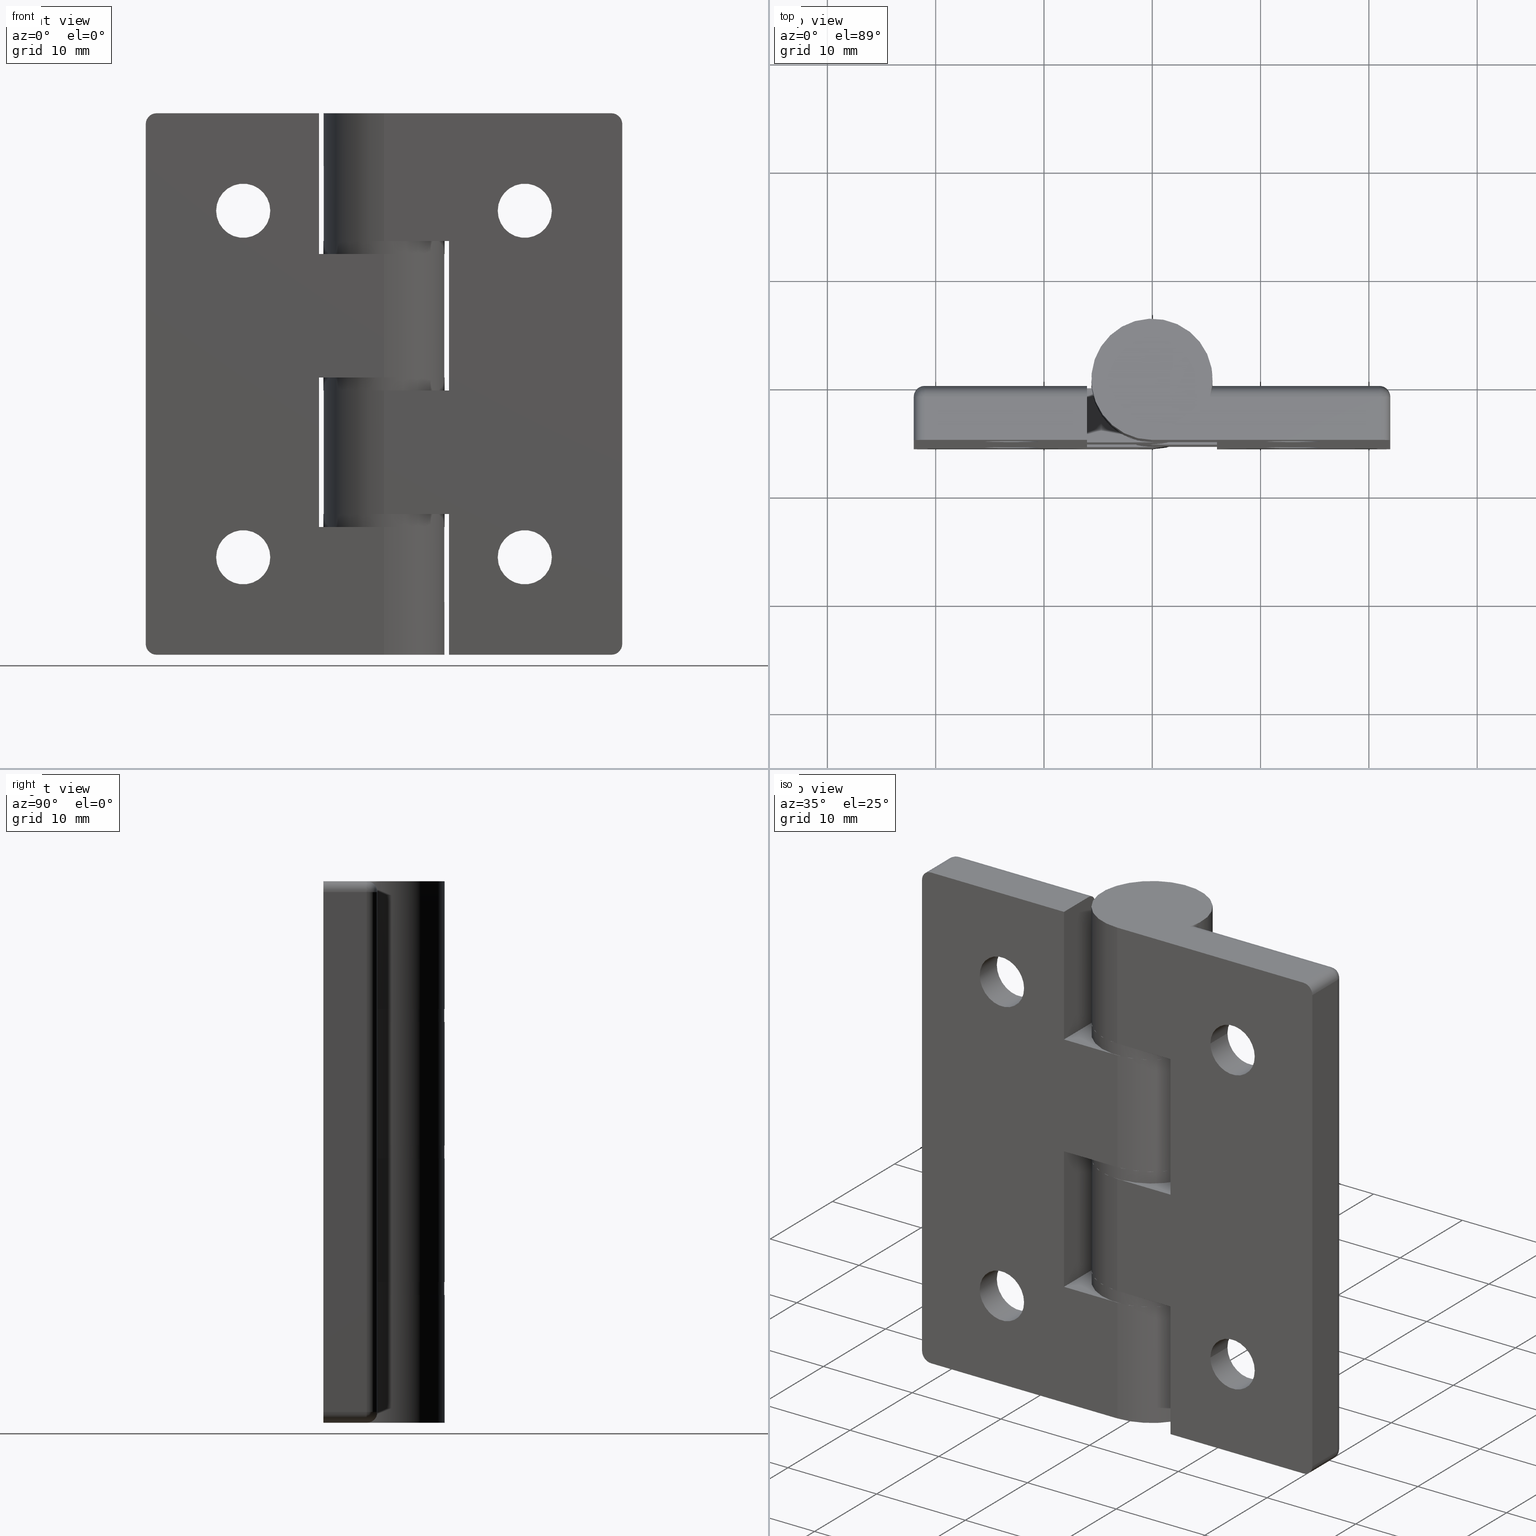
[diagram: canonical four-view strip — front | top / right | iso, engineering-drawing reading convention]
A machine part, canonical four-view strip (front | top / right | iso — engineering-drawing reading convention). The complete STEP part file that produces these views, byte-faithful:
ISO-10303-21;
HEADER;
/* Generated by software containing ST-Developer
 * from STEP Tools, Inc. (www.steptools.com) 
 */

FILE_DESCRIPTION(
/* description */ (''),
/* implementation_level */ '2;1');

FILE_NAME(
/* name */ '\\\\SYNOLOGYNAS\\web\\db2\\HS5044\\\X2\B3C4BA74\X0\\\HS504
4.stp',
/* time_stamp */ '2023-12-20T11:29:50+09:00',
/* author */ ('user'),
/* organization */ (''),
/* preprocessor_version */ 'ST-DEVELOPER v15.6',
/* originating_system */ 'Autodesk Inventor 2015',
/* authorisation */ '');

FILE_SCHEMA (('AUTOMOTIVE_DESIGN { 1 0 10303 214 3 1 1 }'));
ENDSEC;

DATA;
#10=MECHANICAL_DESIGN_GEOMETRIC_PRESENTATION_REPRESENTATION('',(#41,#43,
#42),#950);
#11=ITEM_DEFINED_TRANSFORMATION($,$,#537,#603);
#12=ITEM_DEFINED_TRANSFORMATION($,$,#537,#604);
#13=ITEM_DEFINED_TRANSFORMATION($,$,#587,#605);
#14=ITEM_DEFINED_TRANSFORMATION($,$,#593,#606);
#15=ITEM_DEFINED_TRANSFORMATION($,$,#593,#607);
#16=ITEM_DEFINED_TRANSFORMATION($,$,#593,#608);
#17=(
REPRESENTATION_RELATIONSHIP($,$,#971,#974)
REPRESENTATION_RELATIONSHIP_WITH_TRANSFORMATION(#11)
SHAPE_REPRESENTATION_RELATIONSHIP()
);
#18=(
REPRESENTATION_RELATIONSHIP($,$,#971,#974)
REPRESENTATION_RELATIONSHIP_WITH_TRANSFORMATION(#12)
SHAPE_REPRESENTATION_RELATIONSHIP()
);
#19=(
REPRESENTATION_RELATIONSHIP($,$,#972,#974)
REPRESENTATION_RELATIONSHIP_WITH_TRANSFORMATION(#13)
SHAPE_REPRESENTATION_RELATIONSHIP()
);
#20=(
REPRESENTATION_RELATIONSHIP($,$,#973,#974)
REPRESENTATION_RELATIONSHIP_WITH_TRANSFORMATION(#14)
SHAPE_REPRESENTATION_RELATIONSHIP()
);
#21=(
REPRESENTATION_RELATIONSHIP($,$,#973,#974)
REPRESENTATION_RELATIONSHIP_WITH_TRANSFORMATION(#15)
SHAPE_REPRESENTATION_RELATIONSHIP()
);
#22=(
REPRESENTATION_RELATIONSHIP($,$,#973,#974)
REPRESENTATION_RELATIONSHIP_WITH_TRANSFORMATION(#16)
SHAPE_REPRESENTATION_RELATIONSHIP()
);
#23=CONTEXT_DEPENDENT_SHAPE_REPRESENTATION(#17,#965);
#24=CONTEXT_DEPENDENT_SHAPE_REPRESENTATION(#18,#966);
#25=CONTEXT_DEPENDENT_SHAPE_REPRESENTATION(#19,#967);
#26=CONTEXT_DEPENDENT_SHAPE_REPRESENTATION(#20,#968);
#27=CONTEXT_DEPENDENT_SHAPE_REPRESENTATION(#21,#969);
#28=CONTEXT_DEPENDENT_SHAPE_REPRESENTATION(#22,#970);
#29=NEXT_ASSEMBLY_USAGE_OCCURRENCE('HS5044_L:1',$,$,#979,#976,$);
#30=NEXT_ASSEMBLY_USAGE_OCCURRENCE('HS5044_L:2',$,$,#979,#976,$);
#31=NEXT_ASSEMBLY_USAGE_OCCURRENCE('HS5044_P:1',$,$,#979,#977,$);
#32=NEXT_ASSEMBLY_USAGE_OCCURRENCE('HS5044_W:1',$,$,#979,#978,$);
#33=NEXT_ASSEMBLY_USAGE_OCCURRENCE('HS5044_W:2',$,$,#979,#978,$);
#34=NEXT_ASSEMBLY_USAGE_OCCURRENCE('HS5044_W:3',$,$,#979,#978,$);
#35=SHAPE_REPRESENTATION_RELATIONSHIP('SRR','None',#971,#38);
#36=SHAPE_REPRESENTATION_RELATIONSHIP('SRR','None',#972,#39);
#37=SHAPE_REPRESENTATION_RELATIONSHIP('SRR','None',#973,#40);
#38=ADVANCED_BREP_SHAPE_REPRESENTATION($,(#44),#946);
#39=ADVANCED_BREP_SHAPE_REPRESENTATION($,(#45),#947);
#40=ADVANCED_BREP_SHAPE_REPRESENTATION($,(#46),#948);
#41=STYLED_ITEM('',(#995),#44);
#42=STYLED_ITEM('',(#996),#45);
#43=STYLED_ITEM('',(#997),#46);
#44=MANIFOLD_SOLID_BREP('\X2\C194B9ACB4DC\X0\1',#534);
#45=MANIFOLD_SOLID_BREP('\X2\C194B9ACB4DC\X0\1',#535);
#46=MANIFOLD_SOLID_BREP('\X2\C194B9ACB4DC\X0\2',#536);
#47=CONICAL_SURFACE('',#560,3.625,45.);
#48=CONICAL_SURFACE('',#564,3.625,45.);
#49=FACE_BOUND('',#128,.T.);
#50=FACE_BOUND('',#129,.T.);
#51=FACE_BOUND('',#131,.T.);
#52=FACE_BOUND('',#133,.T.);
#53=FACE_BOUND('',#135,.T.);
#54=FACE_BOUND('',#137,.T.);
#55=FACE_BOUND('',#140,.T.);
#56=FACE_BOUND('',#142,.T.);
#57=FACE_BOUND('',#144,.T.);
#58=FACE_BOUND('',#148,.T.);
#59=FACE_BOUND('',#150,.T.);
#60=FACE_BOUND('',#153,.T.);
#61=FACE_BOUND('',#154,.T.);
#62=FACE_BOUND('',#158,.T.);
#63=FACE_BOUND('',#162,.T.);
#64=FACE_BOUND('',#164,.T.);
#65=FACE_BOUND('',#166,.T.);
#66=FACE_BOUND('',#168,.T.);
#67=PLANE('',#552);
#68=PLANE('',#555);
#69=PLANE('',#557);
#70=PLANE('',#568);
#71=PLANE('',#569);
#72=PLANE('',#572);
#73=PLANE('',#575);
#74=PLANE('',#578);
#75=PLANE('',#583);
#76=PLANE('',#584);
#77=PLANE('',#585);
#78=PLANE('',#591);
#79=PLANE('',#592);
#80=PLANE('',#600);
#81=PLANE('',#601);
#82=SPHERICAL_SURFACE('',#546,1.);
#83=SPHERICAL_SURFACE('',#548,1.);
#84=B_SPLINE_CURVE_WITH_KNOTS('',3,(#808,#809,#810,#811,#812,#813,#814,
#815,#816,#817),.UNSPECIFIED.,.F.,.F.,(4,2,2,2,4),(0.156454962117249,0.195125596353525,
0.233796230589801,0.271393084701648,0.308989938813494),.UNSPECIFIED.);
#85=FACE_OUTER_BOUND('',#118,.T.);
#86=FACE_OUTER_BOUND('',#119,.T.);
#87=FACE_OUTER_BOUND('',#120,.T.);
#88=FACE_OUTER_BOUND('',#121,.T.);
#89=FACE_OUTER_BOUND('',#122,.T.);
#90=FACE_OUTER_BOUND('',#123,.T.);
#91=FACE_OUTER_BOUND('',#124,.T.);
#92=FACE_OUTER_BOUND('',#125,.T.);
#93=FACE_OUTER_BOUND('',#126,.T.);
#94=FACE_OUTER_BOUND('',#127,.T.);
#95=FACE_OUTER_BOUND('',#130,.T.);
#96=FACE_OUTER_BOUND('',#132,.T.);
#97=FACE_OUTER_BOUND('',#134,.T.);
#98=FACE_OUTER_BOUND('',#136,.T.);
#99=FACE_OUTER_BOUND('',#138,.T.);
#100=FACE_OUTER_BOUND('',#139,.T.);
#101=FACE_OUTER_BOUND('',#141,.T.);
#102=FACE_OUTER_BOUND('',#143,.T.);
#103=FACE_OUTER_BOUND('',#145,.T.);
#104=FACE_OUTER_BOUND('',#146,.T.);
#105=FACE_OUTER_BOUND('',#147,.T.);
#106=FACE_OUTER_BOUND('',#149,.T.);
#107=FACE_OUTER_BOUND('',#151,.T.);
#108=FACE_OUTER_BOUND('',#152,.T.);
#109=FACE_OUTER_BOUND('',#155,.T.);
#110=FACE_OUTER_BOUND('',#156,.T.);
#111=FACE_OUTER_BOUND('',#157,.T.);
#112=FACE_OUTER_BOUND('',#159,.T.);
#113=FACE_OUTER_BOUND('',#160,.T.);
#114=FACE_OUTER_BOUND('',#161,.T.);
#115=FACE_OUTER_BOUND('',#163,.T.);
#116=FACE_OUTER_BOUND('',#165,.T.);
#117=FACE_OUTER_BOUND('',#167,.T.);
#118=EDGE_LOOP('',(#365,#366,#367,#368));
#119=EDGE_LOOP('',(#369,#370,#371,#372));
#120=EDGE_LOOP('',(#373,#374,#375,#376));
#121=EDGE_LOOP('',(#377,#378,#379));
#122=EDGE_LOOP('',(#380,#381,#382));
#123=EDGE_LOOP('',(#383,#384,#385,#386));
#124=EDGE_LOOP('',(#387,#388,#389,#390));
#125=EDGE_LOOP('',(#391,#392,#393,#394));
#126=EDGE_LOOP('',(#395,#396,#397,#398));
#127=EDGE_LOOP('',(#399,#400,#401,#402,#403,#404,#405,#406,#407,#408));
#128=EDGE_LOOP('',(#409));
#129=EDGE_LOOP('',(#410));
#130=EDGE_LOOP('',(#411));
#131=EDGE_LOOP('',(#412));
#132=EDGE_LOOP('',(#413));
#133=EDGE_LOOP('',(#414));
#134=EDGE_LOOP('',(#415));
#135=EDGE_LOOP('',(#416));
#136=EDGE_LOOP('',(#417));
#137=EDGE_LOOP('',(#418));
#138=EDGE_LOOP('',(#419,#420,#421,#422));
#139=EDGE_LOOP('',(#423,#424,#425,#426));
#140=EDGE_LOOP('',(#427));
#141=EDGE_LOOP('',(#428,#429,#430,#431));
#142=EDGE_LOOP('',(#432));
#143=EDGE_LOOP('',(#433,#434,#435,#436));
#144=EDGE_LOOP('',(#437));
#145=EDGE_LOOP('',(#438,#439,#440,#441,#442));
#146=EDGE_LOOP('',(#443,#444,#445,#446,#447));
#147=EDGE_LOOP('',(#448));
#148=EDGE_LOOP('',(#449));
#149=EDGE_LOOP('',(#450));
#150=EDGE_LOOP('',(#451));
#151=EDGE_LOOP('',(#452));
#152=EDGE_LOOP('',(#453,#454,#455,#456,#457,#458,#459,#460,#461,#462,#463,
#464));
#153=EDGE_LOOP('',(#465));
#154=EDGE_LOOP('',(#466));
#155=EDGE_LOOP('',(#467,#468,#469,#470));
#156=EDGE_LOOP('',(#471,#472,#473,#474));
#157=EDGE_LOOP('',(#475));
#158=EDGE_LOOP('',(#476));
#159=EDGE_LOOP('',(#477));
#160=EDGE_LOOP('',(#478));
#161=EDGE_LOOP('',(#479));
#162=EDGE_LOOP('',(#480));
#163=EDGE_LOOP('',(#481));
#164=EDGE_LOOP('',(#482));
#165=EDGE_LOOP('',(#483));
#166=EDGE_LOOP('',(#484));
#167=EDGE_LOOP('',(#485));
#168=EDGE_LOOP('',(#486));
#169=LINE('',#790,#200);
#170=LINE('',#793,#201);
#171=LINE('',#798,#202);
#172=LINE('',#801,#203);
#173=LINE('',#806,#204);
#174=LINE('',#818,#205);
#175=LINE('',#825,#206);
#176=LINE('',#828,#207);
#177=LINE('',#831,#208);
#178=LINE('',#832,#209);
#179=LINE('',#835,#210);
#180=LINE('',#840,#211);
#181=LINE('',#843,#212);
#182=LINE('',#845,#213);
#183=LINE('',#847,#214);
#184=LINE('',#849,#215);
#185=LINE('',#851,#216);
#186=LINE('',#853,#217);
#187=LINE('',#854,#218);
#188=LINE('',#873,#219);
#189=LINE('',#875,#220);
#190=LINE('',#876,#221);
#191=LINE('',#879,#222);
#192=LINE('',#886,#223);
#193=LINE('',#891,#224);
#194=LINE('',#893,#225);
#195=LINE('',#899,#226);
#196=LINE('',#900,#227);
#197=LINE('',#902,#228);
#198=LINE('',#909,#229);
#199=LINE('',#910,#230);
#200=VECTOR('',#615,15.);
#201=VECTOR('',#618,15.);
#202=VECTOR('',#623,48.);
#203=VECTOR('',#626,48.);
#204=VECTOR('',#631,15.43223563717);
#205=VECTOR('',#632,15.6334368540005);
#206=VECTOR('',#643,4.);
#207=VECTOR('',#646,4.);
#208=VECTOR('',#649,4.);
#209=VECTOR('',#650,48.);
#210=VECTOR('',#653,4.);
#211=VECTOR('',#660,21.);
#212=VECTOR('',#663,12.);
#213=VECTOR('',#664,0.432235637169974);
#214=VECTOR('',#665,11.4);
#215=VECTOR('',#666,0.432235637169976);
#216=VECTOR('',#667,13.8);
#217=VECTOR('',#668,0.432235637169981);
#218=VECTOR('',#669,10.8);
#219=VECTOR('',#692,5.);
#220=VECTOR('',#693,13.8);
#221=VECTOR('',#694,5.);
#222=VECTOR('',#697,6.00000000000001);
#223=VECTOR('',#706,6.00000000000001);
#224=VECTOR('',#711,5.);
#225=VECTOR('',#712,6.);
#226=VECTOR('',#719,4.);
#227=VECTOR('',#720,13.);
#228=VECTOR('',#723,11.8);
#229=VECTOR('',#734,11.4);
#230=VECTOR('',#735,15.);
#231=CIRCLE('',#539,1.);
#232=CIRCLE('',#540,1.);
#233=CIRCLE('',#542,0.999999999999996);
#234=CIRCLE('',#543,1.);
#235=CIRCLE('',#545,0.999999999999996);
#236=CIRCLE('',#547,1.);
#237=CIRCLE('',#549,1.);
#238=CIRCLE('',#551,1.);
#239=CIRCLE('',#554,1.);
#240=CIRCLE('',#556,5.6);
#241=CIRCLE('',#558,4.75);
#242=CIRCLE('',#559,4.75);
#243=CIRCLE('',#561,2.5);
#244=CIRCLE('',#563,2.5);
#245=CIRCLE('',#565,2.5);
#246=CIRCLE('',#567,2.5);
#247=CIRCLE('',#570,5.6);
#248=CIRCLE('',#571,3.1);
#249=CIRCLE('',#573,5.6);
#250=CIRCLE('',#574,3.1);
#251=CIRCLE('',#576,5.6);
#252=CIRCLE('',#577,3.1);
#253=CIRCLE('',#582,3.1);
#254=CIRCLE('',#589,3.);
#255=CIRCLE('',#590,3.);
#256=CIRCLE('',#595,3.1);
#257=CIRCLE('',#596,3.1);
#258=CIRCLE('',#598,5.6);
#259=CIRCLE('',#599,5.6);
#260=VERTEX_POINT('',#786);
#261=VERTEX_POINT('',#787);
#262=VERTEX_POINT('',#789);
#263=VERTEX_POINT('',#791);
#264=VERTEX_POINT('',#795);
#265=VERTEX_POINT('',#797);
#266=VERTEX_POINT('',#799);
#267=VERTEX_POINT('',#803);
#268=VERTEX_POINT('',#805);
#269=VERTEX_POINT('',#807);
#270=VERTEX_POINT('',#824);
#271=VERTEX_POINT('',#826);
#272=VERTEX_POINT('',#830);
#273=VERTEX_POINT('',#834);
#274=VERTEX_POINT('',#838);
#275=VERTEX_POINT('',#842);
#276=VERTEX_POINT('',#844);
#277=VERTEX_POINT('',#846);
#278=VERTEX_POINT('',#848);
#279=VERTEX_POINT('',#850);
#280=VERTEX_POINT('',#852);
#281=VERTEX_POINT('',#855);
#282=VERTEX_POINT('',#857);
#283=VERTEX_POINT('',#860);
#284=VERTEX_POINT('',#863);
#285=VERTEX_POINT('',#866);
#286=VERTEX_POINT('',#869);
#287=VERTEX_POINT('',#872);
#288=VERTEX_POINT('',#874);
#289=VERTEX_POINT('',#878);
#290=VERTEX_POINT('',#881);
#291=VERTEX_POINT('',#884);
#292=VERTEX_POINT('',#887);
#293=VERTEX_POINT('',#890);
#294=VERTEX_POINT('',#892);
#295=VERTEX_POINT('',#895);
#296=VERTEX_POINT('',#898);
#297=VERTEX_POINT('',#905);
#298=VERTEX_POINT('',#915);
#299=VERTEX_POINT('',#917);
#300=VERTEX_POINT('',#923);
#301=VERTEX_POINT('',#925);
#302=VERTEX_POINT('',#928);
#303=VERTEX_POINT('',#930);
#304=EDGE_CURVE('',#260,#261,#231,.T.);
#305=EDGE_CURVE('',#261,#262,#169,.T.);
#306=EDGE_CURVE('',#262,#263,#232,.T.);
#307=EDGE_CURVE('',#263,#260,#170,.T.);
#308=EDGE_CURVE('',#264,#262,#233,.T.);
#309=EDGE_CURVE('',#262,#265,#171,.T.);
#310=EDGE_CURVE('',#265,#266,#234,.T.);
#311=EDGE_CURVE('',#266,#264,#172,.T.);
#312=EDGE_CURVE('',#267,#265,#235,.T.);
#313=EDGE_CURVE('',#265,#268,#173,.T.);
#314=EDGE_CURVE('',#268,#269,#84,.F.);
#315=EDGE_CURVE('',#269,#267,#174,.T.);
#316=EDGE_CURVE('',#267,#266,#236,.T.);
#317=EDGE_CURVE('',#264,#263,#237,.T.);
#318=EDGE_CURVE('',#264,#270,#175,.T.);
#319=EDGE_CURVE('',#270,#271,#238,.T.);
#320=EDGE_CURVE('',#271,#263,#176,.T.);
#321=EDGE_CURVE('',#272,#266,#177,.T.);
#322=EDGE_CURVE('',#270,#272,#178,.T.);
#323=EDGE_CURVE('',#267,#273,#179,.T.);
#324=EDGE_CURVE('',#273,#272,#239,.T.);
#325=EDGE_CURVE('',#269,#274,#240,.T.);
#326=EDGE_CURVE('',#274,#273,#180,.T.);
#327=EDGE_CURVE('',#261,#275,#181,.T.);
#328=EDGE_CURVE('',#275,#276,#182,.T.);
#329=EDGE_CURVE('',#277,#276,#183,.T.);
#330=EDGE_CURVE('',#277,#278,#184,.T.);
#331=EDGE_CURVE('',#278,#279,#185,.T.);
#332=EDGE_CURVE('',#279,#280,#186,.T.);
#333=EDGE_CURVE('',#268,#280,#187,.T.);
#334=EDGE_CURVE('',#281,#281,#241,.T.);
#335=EDGE_CURVE('',#282,#282,#242,.T.);
#336=EDGE_CURVE('',#283,#283,#243,.T.);
#337=EDGE_CURVE('',#284,#284,#244,.T.);
#338=EDGE_CURVE('',#285,#285,#245,.T.);
#339=EDGE_CURVE('',#286,#286,#246,.T.);
#340=EDGE_CURVE('',#278,#287,#188,.T.);
#341=EDGE_CURVE('',#288,#287,#189,.T.);
#342=EDGE_CURVE('',#288,#279,#190,.T.);
#343=EDGE_CURVE('',#289,#288,#191,.T.);
#344=EDGE_CURVE('',#280,#289,#247,.T.);
#345=EDGE_CURVE('',#290,#290,#248,.T.);
#346=EDGE_CURVE('',#291,#277,#249,.T.);
#347=EDGE_CURVE('',#287,#291,#192,.T.);
#348=EDGE_CURVE('',#292,#292,#250,.T.);
#349=EDGE_CURVE('',#293,#275,#193,.T.);
#350=EDGE_CURVE('',#294,#293,#194,.T.);
#351=EDGE_CURVE('',#276,#294,#251,.T.);
#352=EDGE_CURVE('',#295,#295,#252,.T.);
#353=EDGE_CURVE('',#296,#260,#195,.T.);
#354=EDGE_CURVE('',#293,#296,#196,.T.);
#355=EDGE_CURVE('',#289,#274,#197,.T.);
#356=EDGE_CURVE('',#297,#297,#253,.T.);
#357=EDGE_CURVE('',#294,#291,#198,.T.);
#358=EDGE_CURVE('',#296,#271,#199,.T.);
#359=EDGE_CURVE('',#298,#298,#254,.T.);
#360=EDGE_CURVE('',#299,#299,#255,.T.);
#361=EDGE_CURVE('',#300,#300,#256,.T.);
#362=EDGE_CURVE('',#301,#301,#257,.T.);
#363=EDGE_CURVE('',#302,#302,#258,.T.);
#364=EDGE_CURVE('',#303,#303,#259,.T.);
#365=ORIENTED_EDGE('',*,*,#304,.T.);
#366=ORIENTED_EDGE('',*,*,#305,.T.);
#367=ORIENTED_EDGE('',*,*,#306,.T.);
#368=ORIENTED_EDGE('',*,*,#307,.T.);
#369=ORIENTED_EDGE('',*,*,#308,.T.);
#370=ORIENTED_EDGE('',*,*,#309,.T.);
#371=ORIENTED_EDGE('',*,*,#310,.T.);
#372=ORIENTED_EDGE('',*,*,#311,.T.);
#373=ORIENTED_EDGE('',*,*,#312,.T.);
#374=ORIENTED_EDGE('',*,*,#313,.T.);
#375=ORIENTED_EDGE('',*,*,#314,.T.);
#376=ORIENTED_EDGE('',*,*,#315,.T.);
#377=ORIENTED_EDGE('',*,*,#312,.F.);
#378=ORIENTED_EDGE('',*,*,#316,.T.);
#379=ORIENTED_EDGE('',*,*,#310,.F.);
#380=ORIENTED_EDGE('',*,*,#308,.F.);
#381=ORIENTED_EDGE('',*,*,#317,.T.);
#382=ORIENTED_EDGE('',*,*,#306,.F.);
#383=ORIENTED_EDGE('',*,*,#317,.F.);
#384=ORIENTED_EDGE('',*,*,#318,.T.);
#385=ORIENTED_EDGE('',*,*,#319,.T.);
#386=ORIENTED_EDGE('',*,*,#320,.T.);
#387=ORIENTED_EDGE('',*,*,#311,.F.);
#388=ORIENTED_EDGE('',*,*,#321,.F.);
#389=ORIENTED_EDGE('',*,*,#322,.F.);
#390=ORIENTED_EDGE('',*,*,#318,.F.);
#391=ORIENTED_EDGE('',*,*,#316,.F.);
#392=ORIENTED_EDGE('',*,*,#323,.T.);
#393=ORIENTED_EDGE('',*,*,#324,.T.);
#394=ORIENTED_EDGE('',*,*,#321,.T.);
#395=ORIENTED_EDGE('',*,*,#315,.F.);
#396=ORIENTED_EDGE('',*,*,#325,.T.);
#397=ORIENTED_EDGE('',*,*,#326,.T.);
#398=ORIENTED_EDGE('',*,*,#323,.F.);
#399=ORIENTED_EDGE('',*,*,#305,.F.);
#400=ORIENTED_EDGE('',*,*,#327,.T.);
#401=ORIENTED_EDGE('',*,*,#328,.T.);
#402=ORIENTED_EDGE('',*,*,#329,.F.);
#403=ORIENTED_EDGE('',*,*,#330,.T.);
#404=ORIENTED_EDGE('',*,*,#331,.T.);
#405=ORIENTED_EDGE('',*,*,#332,.T.);
#406=ORIENTED_EDGE('',*,*,#333,.F.);
#407=ORIENTED_EDGE('',*,*,#313,.F.);
#408=ORIENTED_EDGE('',*,*,#309,.F.);
#409=ORIENTED_EDGE('',*,*,#334,.T.);
#410=ORIENTED_EDGE('',*,*,#335,.T.);
#411=ORIENTED_EDGE('',*,*,#334,.F.);
#412=ORIENTED_EDGE('',*,*,#336,.F.);
#413=ORIENTED_EDGE('',*,*,#337,.F.);
#414=ORIENTED_EDGE('',*,*,#336,.T.);
#415=ORIENTED_EDGE('',*,*,#335,.F.);
#416=ORIENTED_EDGE('',*,*,#338,.F.);
#417=ORIENTED_EDGE('',*,*,#339,.F.);
#418=ORIENTED_EDGE('',*,*,#338,.T.);
#419=ORIENTED_EDGE('',*,*,#331,.F.);
#420=ORIENTED_EDGE('',*,*,#340,.T.);
#421=ORIENTED_EDGE('',*,*,#341,.F.);
#422=ORIENTED_EDGE('',*,*,#342,.T.);
#423=ORIENTED_EDGE('',*,*,#332,.F.);
#424=ORIENTED_EDGE('',*,*,#342,.F.);
#425=ORIENTED_EDGE('',*,*,#343,.F.);
#426=ORIENTED_EDGE('',*,*,#344,.F.);
#427=ORIENTED_EDGE('',*,*,#345,.F.);
#428=ORIENTED_EDGE('',*,*,#330,.F.);
#429=ORIENTED_EDGE('',*,*,#346,.F.);
#430=ORIENTED_EDGE('',*,*,#347,.F.);
#431=ORIENTED_EDGE('',*,*,#340,.F.);
#432=ORIENTED_EDGE('',*,*,#348,.F.);
#433=ORIENTED_EDGE('',*,*,#328,.F.);
#434=ORIENTED_EDGE('',*,*,#349,.F.);
#435=ORIENTED_EDGE('',*,*,#350,.F.);
#436=ORIENTED_EDGE('',*,*,#351,.F.);
#437=ORIENTED_EDGE('',*,*,#352,.F.);
#438=ORIENTED_EDGE('',*,*,#304,.F.);
#439=ORIENTED_EDGE('',*,*,#353,.F.);
#440=ORIENTED_EDGE('',*,*,#354,.F.);
#441=ORIENTED_EDGE('',*,*,#349,.T.);
#442=ORIENTED_EDGE('',*,*,#327,.F.);
#443=ORIENTED_EDGE('',*,*,#344,.T.);
#444=ORIENTED_EDGE('',*,*,#355,.T.);
#445=ORIENTED_EDGE('',*,*,#325,.F.);
#446=ORIENTED_EDGE('',*,*,#314,.F.);
#447=ORIENTED_EDGE('',*,*,#333,.T.);
#448=ORIENTED_EDGE('',*,*,#352,.T.);
#449=ORIENTED_EDGE('',*,*,#348,.T.);
#450=ORIENTED_EDGE('',*,*,#345,.T.);
#451=ORIENTED_EDGE('',*,*,#356,.T.);
#452=ORIENTED_EDGE('',*,*,#356,.F.);
#453=ORIENTED_EDGE('',*,*,#324,.F.);
#454=ORIENTED_EDGE('',*,*,#326,.F.);
#455=ORIENTED_EDGE('',*,*,#355,.F.);
#456=ORIENTED_EDGE('',*,*,#343,.T.);
#457=ORIENTED_EDGE('',*,*,#341,.T.);
#458=ORIENTED_EDGE('',*,*,#347,.T.);
#459=ORIENTED_EDGE('',*,*,#357,.F.);
#460=ORIENTED_EDGE('',*,*,#350,.T.);
#461=ORIENTED_EDGE('',*,*,#354,.T.);
#462=ORIENTED_EDGE('',*,*,#358,.T.);
#463=ORIENTED_EDGE('',*,*,#319,.F.);
#464=ORIENTED_EDGE('',*,*,#322,.T.);
#465=ORIENTED_EDGE('',*,*,#337,.T.);
#466=ORIENTED_EDGE('',*,*,#339,.T.);
#467=ORIENTED_EDGE('',*,*,#307,.F.);
#468=ORIENTED_EDGE('',*,*,#320,.F.);
#469=ORIENTED_EDGE('',*,*,#358,.F.);
#470=ORIENTED_EDGE('',*,*,#353,.T.);
#471=ORIENTED_EDGE('',*,*,#346,.T.);
#472=ORIENTED_EDGE('',*,*,#329,.T.);
#473=ORIENTED_EDGE('',*,*,#351,.T.);
#474=ORIENTED_EDGE('',*,*,#357,.T.);
#475=ORIENTED_EDGE('',*,*,#359,.F.);
#476=ORIENTED_EDGE('',*,*,#360,.T.);
#477=ORIENTED_EDGE('',*,*,#359,.T.);
#478=ORIENTED_EDGE('',*,*,#360,.F.);
#479=ORIENTED_EDGE('',*,*,#361,.F.);
#480=ORIENTED_EDGE('',*,*,#362,.F.);
#481=ORIENTED_EDGE('',*,*,#363,.F.);
#482=ORIENTED_EDGE('',*,*,#364,.F.);
#483=ORIENTED_EDGE('',*,*,#364,.T.);
#484=ORIENTED_EDGE('',*,*,#362,.T.);
#485=ORIENTED_EDGE('',*,*,#363,.T.);
#486=ORIENTED_EDGE('',*,*,#361,.T.);
#487=CYLINDRICAL_SURFACE('',#538,1.);
#488=CYLINDRICAL_SURFACE('',#541,1.);
#489=CYLINDRICAL_SURFACE('',#544,1.);
#490=CYLINDRICAL_SURFACE('',#550,1.);
#491=CYLINDRICAL_SURFACE('',#553,1.);
#492=CYLINDRICAL_SURFACE('',#562,2.5);
#493=CYLINDRICAL_SURFACE('',#566,2.5);
#494=CYLINDRICAL_SURFACE('',#579,5.6);
#495=CYLINDRICAL_SURFACE('',#580,3.1);
#496=CYLINDRICAL_SURFACE('',#581,3.1);
#497=CYLINDRICAL_SURFACE('',#586,5.6);
#498=CYLINDRICAL_SURFACE('',#588,3.);
#499=CYLINDRICAL_SURFACE('',#594,3.1);
#500=CYLINDRICAL_SURFACE('',#597,5.6);
#501=ADVANCED_FACE('',(#85),#487,.T.);
#502=ADVANCED_FACE('',(#86),#488,.T.);
#503=ADVANCED_FACE('',(#87),#489,.T.);
#504=ADVANCED_FACE('',(#88),#82,.T.);
#505=ADVANCED_FACE('',(#89),#83,.T.);
#506=ADVANCED_FACE('',(#90),#490,.T.);
#507=ADVANCED_FACE('',(#91),#67,.T.);
#508=ADVANCED_FACE('',(#92),#491,.T.);
#509=ADVANCED_FACE('',(#93),#68,.T.);
#510=ADVANCED_FACE('',(#94,#49,#50),#69,.T.);
#511=ADVANCED_FACE('',(#95,#51),#47,.F.);
#512=ADVANCED_FACE('',(#96,#52),#492,.F.);
#513=ADVANCED_FACE('',(#97,#53),#48,.F.);
#514=ADVANCED_FACE('',(#98,#54),#493,.F.);
#515=ADVANCED_FACE('',(#99),#70,.F.);
#516=ADVANCED_FACE('',(#100,#55),#71,.F.);
#517=ADVANCED_FACE('',(#101,#56),#72,.F.);
#518=ADVANCED_FACE('',(#102,#57),#73,.F.);
#519=ADVANCED_FACE('',(#103),#74,.F.);
#520=ADVANCED_FACE('',(#104),#494,.T.);
#521=ADVANCED_FACE('',(#105,#58),#495,.F.);
#522=ADVANCED_FACE('',(#106,#59),#496,.F.);
#523=ADVANCED_FACE('',(#107),#75,.T.);
#524=ADVANCED_FACE('',(#108,#60,#61),#76,.T.);
#525=ADVANCED_FACE('',(#109),#77,.T.);
#526=ADVANCED_FACE('',(#110),#497,.T.);
#527=ADVANCED_FACE('',(#111,#62),#498,.T.);
#528=ADVANCED_FACE('',(#112),#78,.F.);
#529=ADVANCED_FACE('',(#113),#79,.T.);
#530=ADVANCED_FACE('',(#114,#63),#499,.F.);
#531=ADVANCED_FACE('',(#115,#64),#500,.T.);
#532=ADVANCED_FACE('',(#116,#65),#80,.F.);
#533=ADVANCED_FACE('',(#117,#66),#81,.T.);
#534=CLOSED_SHELL('',(#501,#502,#503,#504,#505,#506,#507,#508,#509,#510,
#511,#512,#513,#514,#515,#516,#517,#518,#519,#520,#521,#522,#523,#524,#525,
#526));
#535=CLOSED_SHELL('',(#527,#528,#529));
#536=CLOSED_SHELL('',(#530,#531,#532,#533));
#537=AXIS2_PLACEMENT_3D('placement',#784,#609,#610);
#538=AXIS2_PLACEMENT_3D('',#785,#611,#612);
#539=AXIS2_PLACEMENT_3D('',#788,#613,#614);
#540=AXIS2_PLACEMENT_3D('',#792,#616,#617);
#541=AXIS2_PLACEMENT_3D('',#794,#619,#620);
#542=AXIS2_PLACEMENT_3D('',#796,#621,#622);
#543=AXIS2_PLACEMENT_3D('',#800,#624,#625);
#544=AXIS2_PLACEMENT_3D('',#802,#627,#628);
#545=AXIS2_PLACEMENT_3D('',#804,#629,#630);
#546=AXIS2_PLACEMENT_3D('',#819,#633,#634);
#547=AXIS2_PLACEMENT_3D('',#820,#635,#636);
#548=AXIS2_PLACEMENT_3D('',#821,#637,#638);
#549=AXIS2_PLACEMENT_3D('',#822,#639,#640);
#550=AXIS2_PLACEMENT_3D('',#823,#641,#642);
#551=AXIS2_PLACEMENT_3D('',#827,#644,#645);
#552=AXIS2_PLACEMENT_3D('',#829,#647,#648);
#553=AXIS2_PLACEMENT_3D('',#833,#651,#652);
#554=AXIS2_PLACEMENT_3D('',#836,#654,#655);
#555=AXIS2_PLACEMENT_3D('',#837,#656,#657);
#556=AXIS2_PLACEMENT_3D('',#839,#658,#659);
#557=AXIS2_PLACEMENT_3D('',#841,#661,#662);
#558=AXIS2_PLACEMENT_3D('',#856,#670,#671);
#559=AXIS2_PLACEMENT_3D('',#858,#672,#673);
#560=AXIS2_PLACEMENT_3D('',#859,#674,#675);
#561=AXIS2_PLACEMENT_3D('',#861,#676,#677);
#562=AXIS2_PLACEMENT_3D('',#862,#678,#679);
#563=AXIS2_PLACEMENT_3D('',#864,#680,#681);
#564=AXIS2_PLACEMENT_3D('',#865,#682,#683);
#565=AXIS2_PLACEMENT_3D('',#867,#684,#685);
#566=AXIS2_PLACEMENT_3D('',#868,#686,#687);
#567=AXIS2_PLACEMENT_3D('',#870,#688,#689);
#568=AXIS2_PLACEMENT_3D('',#871,#690,#691);
#569=AXIS2_PLACEMENT_3D('',#877,#695,#696);
#570=AXIS2_PLACEMENT_3D('',#880,#698,#699);
#571=AXIS2_PLACEMENT_3D('',#882,#700,#701);
#572=AXIS2_PLACEMENT_3D('',#883,#702,#703);
#573=AXIS2_PLACEMENT_3D('',#885,#704,#705);
#574=AXIS2_PLACEMENT_3D('',#888,#707,#708);
#575=AXIS2_PLACEMENT_3D('',#889,#709,#710);
#576=AXIS2_PLACEMENT_3D('',#894,#713,#714);
#577=AXIS2_PLACEMENT_3D('',#896,#715,#716);
#578=AXIS2_PLACEMENT_3D('',#897,#717,#718);
#579=AXIS2_PLACEMENT_3D('',#901,#721,#722);
#580=AXIS2_PLACEMENT_3D('',#903,#724,#725);
#581=AXIS2_PLACEMENT_3D('',#904,#726,#727);
#582=AXIS2_PLACEMENT_3D('',#906,#728,#729);
#583=AXIS2_PLACEMENT_3D('',#907,#730,#731);
#584=AXIS2_PLACEMENT_3D('',#908,#732,#733);
#585=AXIS2_PLACEMENT_3D('',#911,#736,#737);
#586=AXIS2_PLACEMENT_3D('',#912,#738,#739);
#587=AXIS2_PLACEMENT_3D('placement',#913,#740,#741);
#588=AXIS2_PLACEMENT_3D('',#914,#742,#743);
#589=AXIS2_PLACEMENT_3D('',#916,#744,#745);
#590=AXIS2_PLACEMENT_3D('',#918,#746,#747);
#591=AXIS2_PLACEMENT_3D('',#919,#748,#749);
#592=AXIS2_PLACEMENT_3D('',#920,#750,#751);
#593=AXIS2_PLACEMENT_3D('placement',#921,#752,#753);
#594=AXIS2_PLACEMENT_3D('',#922,#754,#755);
#595=AXIS2_PLACEMENT_3D('',#924,#756,#757);
#596=AXIS2_PLACEMENT_3D('',#926,#758,#759);
#597=AXIS2_PLACEMENT_3D('',#927,#760,#761);
#598=AXIS2_PLACEMENT_3D('',#929,#762,#763);
#599=AXIS2_PLACEMENT_3D('',#931,#764,#765);
#600=AXIS2_PLACEMENT_3D('',#932,#766,#767);
#601=AXIS2_PLACEMENT_3D('',#933,#768,#769);
#602=AXIS2_PLACEMENT_3D('placement',#934,#770,#771);
#603=AXIS2_PLACEMENT_3D('',#935,#772,#773);
#604=AXIS2_PLACEMENT_3D('',#936,#774,#775);
#605=AXIS2_PLACEMENT_3D('',#937,#776,#777);
#606=AXIS2_PLACEMENT_3D('',#938,#778,#779);
#607=AXIS2_PLACEMENT_3D('',#939,#780,#781);
#608=AXIS2_PLACEMENT_3D('',#940,#782,#783);
#609=DIRECTION('axis',(0.,0.,1.));
#610=DIRECTION('refdir',(1.,0.,0.));
#611=DIRECTION('center_axis',(1.,1.26161707343768E-16,0.));
#612=DIRECTION('ref_axis',(0.,0.707106781186548,0.707106781186547));
#613=DIRECTION('center_axis',(-1.,-1.11022302462516E-16,3.41607084500048E-16));
#614=DIRECTION('ref_axis',(0.,0.707106781186548,0.707106781186547));
#615=DIRECTION('',(-1.,-1.26161707343768E-16,0.));
#616=DIRECTION('center_axis',(1.,0.,0.));
#617=DIRECTION('ref_axis',(0.,1.,0.));
#618=DIRECTION('',(1.,1.26161707343768E-16,0.));
#619=DIRECTION('center_axis',(0.,0.,-1.));
#620=DIRECTION('ref_axis',(-0.707106781186546,0.707106781186549,0.));
#621=DIRECTION('center_axis',(0.,0.,-1.));
#622=DIRECTION('ref_axis',(-1.,0.,0.));
#623=DIRECTION('',(0.,0.,-1.));
#624=DIRECTION('center_axis',(0.,0.,1.));
#625=DIRECTION('ref_axis',(0.,1.,0.));
#626=DIRECTION('',(0.,0.,1.));
#627=DIRECTION('center_axis',(1.,1.26161707343768E-16,0.));
#628=DIRECTION('ref_axis',(0.,0.707106781186549,-0.707106781186546));
#629=DIRECTION('center_axis',(1.,0.,0.));
#630=DIRECTION('ref_axis',(0.,0.,-1.));
#631=DIRECTION('',(1.,1.26161707343768E-16,0.));
#632=DIRECTION('',(-1.,-1.26161707343768E-16,0.));
#633=DIRECTION('center_axis',(0.408248290463864,-0.40824829046386,-0.816496580927727));
#634=DIRECTION('ref_axis',(-0.57735026918963,0.577350269189626,-0.577350269189622));
#635=DIRECTION('center_axis',(0.,1.,0.));
#636=DIRECTION('ref_axis',(-0.70710678118655,0.,-0.707106781186545));
#637=DIRECTION('center_axis',(-0.816496580927726,-0.408248290463863,-0.408248290463863));
#638=DIRECTION('ref_axis',(-0.577350269189626,0.577350269189626,0.577350269189625));
#639=DIRECTION('center_axis',(0.,1.,0.));
#640=DIRECTION('ref_axis',(-0.70710678118655,0.,0.707106781186545));
#641=DIRECTION('center_axis',(0.,1.,0.));
#642=DIRECTION('ref_axis',(-0.707106781186549,0.,0.707106781186546));
#643=DIRECTION('',(0.,-1.,0.));
#644=DIRECTION('center_axis',(-1.22464679914735E-16,1.,0.));
#645=DIRECTION('ref_axis',(-0.707106781186549,0.,0.707106781186546));
#646=DIRECTION('',(0.,1.,0.));
#647=DIRECTION('center_axis',(-1.,0.,0.));
#648=DIRECTION('ref_axis',(0.,1.,0.));
#649=DIRECTION('',(0.,1.,0.));
#650=DIRECTION('',(0.,0.,-1.));
#651=DIRECTION('center_axis',(0.,1.,0.));
#652=DIRECTION('ref_axis',(-0.707106781186551,0.,-0.707106781186544));
#653=DIRECTION('',(0.,-1.,0.));
#654=DIRECTION('center_axis',(-1.22464679914735E-16,1.,0.));
#655=DIRECTION('ref_axis',(-0.707106781186551,0.,-0.707106781186544));
#656=DIRECTION('center_axis',(0.,0.,-1.));
#657=DIRECTION('ref_axis',(-1.,0.,0.));
#658=DIRECTION('center_axis',(0.,0.,-1.));
#659=DIRECTION('ref_axis',(-1.,0.,0.));
#660=DIRECTION('',(-1.,-1.22464679914735E-16,0.));
#661=DIRECTION('center_axis',(-1.26161707343768E-16,1.,0.));
#662=DIRECTION('ref_axis',(1.,8.88178419700125E-17,0.));
#663=DIRECTION('',(-3.41607084500048E-16,-4.30977330212528E-32,-1.));
#664=DIRECTION('',(1.,1.26161707343768E-16,0.));
#665=DIRECTION('',(0.,0.,1.));
#666=DIRECTION('',(-1.,-1.26161707343768E-16,0.));
#667=DIRECTION('',(-3.21803775253669E-16,-4.0599313715673E-32,-1.));
#668=DIRECTION('',(1.,1.26161707343768E-16,0.));
#669=DIRECTION('',(0.,0.,1.));
#670=DIRECTION('center_axis',(1.26161707343768E-16,-1.,0.));
#671=DIRECTION('ref_axis',(1.,1.26161707343768E-16,0.));
#672=DIRECTION('center_axis',(1.26161707343768E-16,-1.,0.));
#673=DIRECTION('ref_axis',(1.,1.26161707343768E-16,0.));
#674=DIRECTION('center_axis',(-1.26161707343768E-16,1.,0.));
#675=DIRECTION('ref_axis',(1.,1.26161707343768E-16,0.));
#676=DIRECTION('center_axis',(-1.26161707343768E-16,1.,0.));
#677=DIRECTION('ref_axis',(1.,1.26161707343768E-16,0.));
#678=DIRECTION('center_axis',(-1.26161707343768E-16,1.,0.));
#679=DIRECTION('ref_axis',(1.,1.26161707343768E-16,0.));
#680=DIRECTION('center_axis',(-1.22464679914735E-16,1.,0.));
#681=DIRECTION('ref_axis',(1.,1.26161707343768E-16,0.));
#682=DIRECTION('center_axis',(-1.26161707343768E-16,1.,0.));
#683=DIRECTION('ref_axis',(1.,1.26161707343768E-16,0.));
#684=DIRECTION('center_axis',(-1.26161707343768E-16,1.,0.));
#685=DIRECTION('ref_axis',(1.,1.26161707343768E-16,0.));
#686=DIRECTION('center_axis',(-1.26161707343768E-16,1.,0.));
#687=DIRECTION('ref_axis',(1.,1.26161707343768E-16,0.));
#688=DIRECTION('center_axis',(-1.22464679914735E-16,1.,0.));
#689=DIRECTION('ref_axis',(1.,1.26161707343768E-16,0.));
#690=DIRECTION('center_axis',(-1.,-1.11022302462516E-16,3.21803775253669E-16));
#691=DIRECTION('ref_axis',(3.5527136788005E-16,0.,1.));
#692=DIRECTION('',(1.11022302462516E-16,-1.,0.));
#693=DIRECTION('',(3.21803775253669E-16,3.9409596331794E-32,1.));
#694=DIRECTION('',(-1.11022302462516E-16,1.,0.));
#695=DIRECTION('center_axis',(0.,0.,-1.));
#696=DIRECTION('ref_axis',(-1.,-8.88178419700125E-17,0.));
#697=DIRECTION('',(-1.,-1.22464679914735E-16,0.));
#698=DIRECTION('center_axis',(0.,0.,-1.));
#699=DIRECTION('ref_axis',(-1.,0.,0.));
#700=DIRECTION('center_axis',(0.,0.,1.));
#701=DIRECTION('ref_axis',(-1.,0.,0.));
#702=DIRECTION('center_axis',(0.,0.,1.));
#703=DIRECTION('ref_axis',(1.,8.88178419700125E-17,0.));
#704=DIRECTION('center_axis',(0.,0.,1.));
#705=DIRECTION('ref_axis',(-1.,0.,0.));
#706=DIRECTION('',(1.,1.22464679914735E-16,0.));
#707=DIRECTION('center_axis',(0.,0.,-1.));
#708=DIRECTION('ref_axis',(-1.,0.,0.));
#709=DIRECTION('center_axis',(0.,0.,-1.));
#710=DIRECTION('ref_axis',(-1.,-8.88178419700125E-17,0.));
#711=DIRECTION('',(-1.11022302462516E-16,1.,0.));
#712=DIRECTION('',(-1.,-1.22464679914735E-16,0.));
#713=DIRECTION('center_axis',(0.,0.,-1.));
#714=DIRECTION('ref_axis',(-1.,0.,0.));
#715=DIRECTION('center_axis',(0.,0.,1.));
#716=DIRECTION('ref_axis',(-1.,0.,0.));
#717=DIRECTION('center_axis',(-1.,-1.11022302462516E-16,3.41607084500048E-16));
#718=DIRECTION('ref_axis',(3.5527136788005E-16,0.,1.));
#719=DIRECTION('',(-1.11022302462516E-16,1.,0.));
#720=DIRECTION('',(3.41607084500048E-16,4.18348022599043E-32,1.));
#721=DIRECTION('center_axis',(0.,0.,-1.));
#722=DIRECTION('ref_axis',(-1.,0.,0.));
#723=DIRECTION('',(0.,0.,-1.));
#724=DIRECTION('center_axis',(0.,0.,-1.));
#725=DIRECTION('ref_axis',(-1.,0.,0.));
#726=DIRECTION('center_axis',(0.,0.,-1.));
#727=DIRECTION('ref_axis',(-1.,0.,0.));
#728=DIRECTION('center_axis',(0.,0.,-1.));
#729=DIRECTION('ref_axis',(-1.,0.,0.));
#730=DIRECTION('center_axis',(0.,0.,1.));
#731=DIRECTION('ref_axis',(1.,0.,0.));
#732=DIRECTION('center_axis',(1.22464679914735E-16,-1.,0.));
#733=DIRECTION('ref_axis',(-1.,-1.22464679914735E-16,0.));
#734=DIRECTION('',(0.,0.,-1.));
#735=DIRECTION('',(-1.,-1.22464679914735E-16,0.));
#736=DIRECTION('center_axis',(0.,0.,1.));
#737=DIRECTION('ref_axis',(1.,0.,0.));
#738=DIRECTION('center_axis',(0.,0.,-1.));
#739=DIRECTION('ref_axis',(-1.,0.,0.));
#740=DIRECTION('axis',(0.,0.,1.));
#741=DIRECTION('refdir',(1.,0.,0.));
#742=DIRECTION('center_axis',(0.,0.,-1.));
#743=DIRECTION('ref_axis',(-1.,0.,0.));
#744=DIRECTION('center_axis',(0.,0.,-1.));
#745=DIRECTION('ref_axis',(-1.,0.,0.));
#746=DIRECTION('center_axis',(0.,0.,-1.));
#747=DIRECTION('ref_axis',(-1.,0.,0.));
#748=DIRECTION('center_axis',(0.,0.,1.));
#749=DIRECTION('ref_axis',(1.,0.,0.));
#750=DIRECTION('center_axis',(0.,0.,1.));
#751=DIRECTION('ref_axis',(1.,0.,0.));
#752=DIRECTION('axis',(0.,0.,1.));
#753=DIRECTION('refdir',(1.,0.,0.));
#754=DIRECTION('center_axis',(0.,1.,0.));
#755=DIRECTION('ref_axis',(1.,0.,0.));
#756=DIRECTION('center_axis',(0.,-1.,0.));
#757=DIRECTION('ref_axis',(1.,0.,0.));
#758=DIRECTION('center_axis',(0.,1.,0.));
#759=DIRECTION('ref_axis',(1.,0.,0.));
#760=DIRECTION('center_axis',(0.,1.,0.));
#761=DIRECTION('ref_axis',(1.,0.,0.));
#762=DIRECTION('center_axis',(0.,1.,0.));
#763=DIRECTION('ref_axis',(1.,0.,0.));
#764=DIRECTION('center_axis',(0.,-1.,0.));
#765=DIRECTION('ref_axis',(1.,0.,0.));
#766=DIRECTION('center_axis',(0.,1.,0.));
#767=DIRECTION('ref_axis',(0.,0.,1.));
#768=DIRECTION('center_axis',(0.,1.,0.));
#769=DIRECTION('ref_axis',(0.,0.,1.));
#770=DIRECTION('axis',(0.,0.,1.));
#771=DIRECTION('refdir',(1.,0.,0.));
#772=DIRECTION('',(0.,0.,1.));
#773=DIRECTION('',(1.,0.,0.));
#774=DIRECTION('',(3.94430452610506E-31,1.89660947389512E-32,-1.));
#775=DIRECTION('',(-1.,3.74700270810991E-16,-3.94430452610506E-31));
#776=DIRECTION('',(0.,0.,1.));
#777=DIRECTION('',(0.980802432750639,0.195004071522697,0.));
#778=DIRECTION('',(-3.08086889333481E-15,-1.,1.66822084538577E-16));
#779=DIRECTION('',(1.,-3.08086889333481E-15,-3.7470027081099E-16));
#780=DIRECTION('',(0.684519028566946,0.728994992801573,0.));
#781=DIRECTION('',(0.728994992801573,-0.684519028566946,0.));
#782=DIRECTION('',(0.,1.,0.));
#783=DIRECTION('',(1.,0.,0.));
#784=CARTESIAN_POINT('',(0.,0.,0.));
#785=CARTESIAN_POINT('Origin',(-11.,4.,-1.));
#786=CARTESIAN_POINT('',(-6.,4.,0.));
#787=CARTESIAN_POINT('',(-6.,5.,-1.));
#788=CARTESIAN_POINT('Origin',(-6.,4.,-1.));
#789=CARTESIAN_POINT('',(-21.,5.,-1.));
#790=CARTESIAN_POINT('',(-11.,5.,-1.));
#791=CARTESIAN_POINT('',(-21.,4.,0.));
#792=CARTESIAN_POINT('Origin',(-21.,4.,-1.));
#793=CARTESIAN_POINT('',(-11.,4.,0.));
#794=CARTESIAN_POINT('Origin',(-21.,4.,0.));
#795=CARTESIAN_POINT('',(-22.,4.,-1.));
#796=CARTESIAN_POINT('Origin',(-21.,4.,-1.));
#797=CARTESIAN_POINT('',(-21.,5.,-49.));
#798=CARTESIAN_POINT('',(-21.,5.,0.));
#799=CARTESIAN_POINT('',(-22.,4.,-49.));
#800=CARTESIAN_POINT('Origin',(-21.,4.,-49.));
#801=CARTESIAN_POINT('',(-22.,4.,0.));
#802=CARTESIAN_POINT('Origin',(-16.5,4.,-49.));
#803=CARTESIAN_POINT('',(-21.,4.,-50.));
#804=CARTESIAN_POINT('Origin',(-21.,4.,-49.));
#805=CARTESIAN_POINT('',(-5.56776436283003,5.,-49.));
#806=CARTESIAN_POINT('',(-16.5,5.,-49.));
#807=CARTESIAN_POINT('',(-5.3665631459995,4.,-50.));
#808=CARTESIAN_POINT('Ctrl Pts',(-5.3665631459995,4.,-50.));
#809=CARTESIAN_POINT('Ctrl Pts',(-5.40339232146262,4.12352880983621,-50.));
#810=CARTESIAN_POINT('Ctrl Pts',(-5.43806553789406,4.25703521338244,-49.9756462082007));
#811=CARTESIAN_POINT('Ctrl Pts',(-5.49332896830474,4.50480684467718,-49.8735689438494));
#812=CARTESIAN_POINT('Ctrl Pts',(-5.51416177521241,4.61898868519022,-49.7957745763114));
#813=CARTESIAN_POINT('Ctrl Pts',(-5.54284988603602,4.79705515746961,-49.6166108114917));
#814=CARTESIAN_POINT('Ctrl Pts',(-5.55291171628834,4.87351275050342,-49.5046143298389));
#815=CARTESIAN_POINT('Ctrl Pts',(-5.56524659324727,4.97498593462318,-49.2589644880217));
#816=CARTESIAN_POINT('Ctrl Pts',(-5.56776436283003,5.,-49.1253228470395));
#817=CARTESIAN_POINT('Ctrl Pts',(-5.56776436283003,5.,-49.));
#818=CARTESIAN_POINT('',(-16.5,4.,-50.));
#819=CARTESIAN_POINT('Origin',(-21.,4.,-49.));
#820=CARTESIAN_POINT('Origin',(-21.,4.,-49.));
#821=CARTESIAN_POINT('Origin',(-21.,4.,-1.));
#822=CARTESIAN_POINT('Origin',(-21.,4.,-1.));
#823=CARTESIAN_POINT('Origin',(-21.,2.8,-1.));
#824=CARTESIAN_POINT('',(-22.,-2.69422295812418E-15,-1.));
#825=CARTESIAN_POINT('',(-22.,2.8,-1.));
#826=CARTESIAN_POINT('',(-21.,-2.57175827820944E-15,0.));
#827=CARTESIAN_POINT('Origin',(-21.,0.,-1.));
#828=CARTESIAN_POINT('',(-21.,2.8,0.));
#829=CARTESIAN_POINT('Origin',(-22.,-2.69422295812418E-15,0.));
#830=CARTESIAN_POINT('',(-22.,-2.69422295812418E-15,-49.));
#831=CARTESIAN_POINT('',(-22.,1.25,-49.));
#832=CARTESIAN_POINT('',(-22.,-2.69422295812418E-15,0.));
#833=CARTESIAN_POINT('Origin',(-21.,1.25,-49.));
#834=CARTESIAN_POINT('',(-21.,-2.57175827820944E-15,-50.));
#835=CARTESIAN_POINT('',(-21.,1.25,-50.));
#836=CARTESIAN_POINT('Origin',(-21.,0.,-49.));
#837=CARTESIAN_POINT('Origin',(-11.,2.5,-50.));
#838=CARTESIAN_POINT('',(0.,0.,-50.));
#839=CARTESIAN_POINT('Origin',(-6.66133814775094E-15,5.6,-50.));
#840=CARTESIAN_POINT('',(0.,0.,-50.));
#841=CARTESIAN_POINT('Origin',(-22.,5.,0.));
#842=CARTESIAN_POINT('',(-6.,5.,-13.));
#843=CARTESIAN_POINT('',(-6.,5.,-6.5));
#844=CARTESIAN_POINT('',(-5.56776436283003,5.,-13.));
#845=CARTESIAN_POINT('',(-6.5,5.,-13.));
#846=CARTESIAN_POINT('',(-5.56776436283003,5.,-24.4));
#847=CARTESIAN_POINT('',(-5.56776436283003,5.,0.));
#848=CARTESIAN_POINT('',(-6.00000000000001,5.,-24.4));
#849=CARTESIAN_POINT('',(-14.,5.,-24.4));
#850=CARTESIAN_POINT('',(-6.00000000000001,5.,-38.2));
#851=CARTESIAN_POINT('',(-6.,5.,-19.1));
#852=CARTESIAN_POINT('',(-5.56776436283003,5.,-38.2));
#853=CARTESIAN_POINT('',(-6.5,5.,-38.2));
#854=CARTESIAN_POINT('',(-5.56776436283003,5.,0.));
#855=CARTESIAN_POINT('',(-8.25,5.,-41.));
#856=CARTESIAN_POINT('Origin',(-13.,5.,-41.));
#857=CARTESIAN_POINT('',(-8.25,5.,-9.));
#858=CARTESIAN_POINT('Origin',(-13.,5.,-9.));
#859=CARTESIAN_POINT('Origin',(-13.,3.875,-41.));
#860=CARTESIAN_POINT('',(-10.5,2.75,-41.));
#861=CARTESIAN_POINT('Origin',(-13.,2.75,-41.));
#862=CARTESIAN_POINT('Origin',(-13.,-53.1996563563738,-41.));
#863=CARTESIAN_POINT('',(-15.5,-3.15404268359419E-16,-41.));
#864=CARTESIAN_POINT('Origin',(-13.,0.,-41.));
#865=CARTESIAN_POINT('Origin',(-13.,3.875,-9.));
#866=CARTESIAN_POINT('',(-10.5,2.75,-9.));
#867=CARTESIAN_POINT('Origin',(-13.,2.75,-9.));
#868=CARTESIAN_POINT('Origin',(-13.,-53.1996563563738,-9.));
#869=CARTESIAN_POINT('',(-15.5,-3.15404268359419E-16,-9.));
#870=CARTESIAN_POINT('Origin',(-13.,0.,-9.));
#871=CARTESIAN_POINT('Origin',(-6.00000000000001,5.,-38.2));
#872=CARTESIAN_POINT('',(-6.00000000000001,-5.55111512312578E-16,-24.4));
#873=CARTESIAN_POINT('',(-6.00000000000001,5.,-24.4));
#874=CARTESIAN_POINT('',(-6.00000000000001,-5.55111512312578E-16,-38.2));
#875=CARTESIAN_POINT('',(-6.,-5.55111512312578E-16,-19.1));
#876=CARTESIAN_POINT('',(-6.00000000000001,5.,-38.2));
#877=CARTESIAN_POINT('Origin',(9.,5.,-38.2));
#878=CARTESIAN_POINT('',(0.,0.,-38.2));
#879=CARTESIAN_POINT('',(4.5,5.55111512312578E-16,-38.2));
#880=CARTESIAN_POINT('Origin',(-6.66133814775094E-15,5.6,-38.2));
#881=CARTESIAN_POINT('',(3.09999999999999,5.6,-38.2));
#882=CARTESIAN_POINT('Origin',(-6.66133814775094E-15,5.6,-38.2));
#883=CARTESIAN_POINT('Origin',(-6.00000000000001,5.,-24.4));
#884=CARTESIAN_POINT('',(0.,0.,-24.4));
#885=CARTESIAN_POINT('Origin',(-6.66133814775094E-15,5.6,-24.4));
#886=CARTESIAN_POINT('',(-3.,-2.77555756156289E-16,-24.4));
#887=CARTESIAN_POINT('',(3.09999999999999,5.6,-24.4));
#888=CARTESIAN_POINT('Origin',(-6.66133814775094E-15,5.6,-24.4));
#889=CARTESIAN_POINT('Origin',(9.,5.,-13.));
#890=CARTESIAN_POINT('',(-6.,-5.55111512312578E-16,-13.));
#891=CARTESIAN_POINT('',(-6.,5.,-13.));
#892=CARTESIAN_POINT('',(0.,0.,-13.));
#893=CARTESIAN_POINT('',(4.5,5.55111512312578E-16,-13.));
#894=CARTESIAN_POINT('Origin',(-6.66133814775094E-15,5.6,-13.));
#895=CARTESIAN_POINT('',(3.09999999999999,5.6,-13.));
#896=CARTESIAN_POINT('Origin',(-6.66133814775094E-15,5.6,-13.));
#897=CARTESIAN_POINT('Origin',(-6.,5.,-13.));
#898=CARTESIAN_POINT('',(-6.,-5.55111512312578E-16,0.));
#899=CARTESIAN_POINT('',(-6.,5.3,0.));
#900=CARTESIAN_POINT('',(-6.,-5.55111512312578E-16,-6.5));
#901=CARTESIAN_POINT('Origin',(-6.66133814775094E-15,5.6,0.));
#902=CARTESIAN_POINT('',(0.,0.,0.));
#903=CARTESIAN_POINT('Origin',(-6.66133814775094E-15,5.6,0.));
#904=CARTESIAN_POINT('Origin',(-6.66133814775094E-15,5.6,0.));
#905=CARTESIAN_POINT('',(3.09999999999999,5.6,-48.));
#906=CARTESIAN_POINT('Origin',(-6.66133814775094E-15,5.6,-48.));
#907=CARTESIAN_POINT('Origin',(-6.71104991165649E-15,5.6,-48.));
#908=CARTESIAN_POINT('Origin',(0.,0.,0.));
#909=CARTESIAN_POINT('',(0.,0.,0.));
#910=CARTESIAN_POINT('',(0.,0.,0.));
#911=CARTESIAN_POINT('Origin',(-6.84507320585405E-15,5.6,0.));
#912=CARTESIAN_POINT('Origin',(-6.66133814775094E-15,5.6,0.));
#913=CARTESIAN_POINT('',(0.,0.,0.));
#914=CARTESIAN_POINT('Origin',(0.,0.,0.));
#915=CARTESIAN_POINT('',(3.,3.67394039744206E-16,-46.));
#916=CARTESIAN_POINT('Origin',(0.,0.,-46.));
#917=CARTESIAN_POINT('',(3.,3.67394039744206E-16,0.));
#918=CARTESIAN_POINT('Origin',(0.,0.,0.));
#919=CARTESIAN_POINT('Origin',(-1.84813812287733E-16,-7.70988211545247E-17,
-46.));
#920=CARTESIAN_POINT('Origin',(-1.84813812287733E-16,-7.70988211545247E-17,
0.));
#921=CARTESIAN_POINT('',(0.,0.,0.));
#922=CARTESIAN_POINT('Origin',(0.,0.,0.));
#923=CARTESIAN_POINT('',(-3.1,1.2,3.7964050773568E-16));
#924=CARTESIAN_POINT('Origin',(0.,1.2,0.));
#925=CARTESIAN_POINT('',(-3.1,0.,3.7964050773568E-16));
#926=CARTESIAN_POINT('Origin',(0.,0.,0.));
#927=CARTESIAN_POINT('Origin',(0.,0.,0.));
#928=CARTESIAN_POINT('',(-5.6,1.2,6.85802207522518E-16));
#929=CARTESIAN_POINT('Origin',(0.,1.2,0.));
#930=CARTESIAN_POINT('',(-5.6,0.,6.85802207522518E-16));
#931=CARTESIAN_POINT('Origin',(0.,0.,0.));
#932=CARTESIAN_POINT('Origin',(2.22361943577049E-16,0.,-8.26058798084194E-17));
#933=CARTESIAN_POINT('Origin',(2.22361943577049E-16,1.2,-8.26058798084194E-17));
#934=CARTESIAN_POINT('',(0.,0.,0.));
#935=CARTESIAN_POINT('',(-0.025667405421107,-5.51386735848713,25.0006316206968));
#936=CARTESIAN_POINT('',(-0.0256674054211189,-5.51386735848715,-24.9993683793033));
#937=CARTESIAN_POINT('',(-0.0256674054211137,0.0861326415128716,23.0006316206968));
#938=CARTESIAN_POINT('',(-0.0256674054211137,0.0861326415128694,12.0006316206968));
#939=CARTESIAN_POINT('',(-0.0256674054211137,0.0861326415128716,0.600631620696799));
#940=CARTESIAN_POINT('',(-0.0256674054211137,0.0861326415128716,-11.9993683793032));
#941=UNCERTAINTY_MEASURE_WITH_UNIT(LENGTH_MEASURE(0.01),#951,
'DISTANCE_ACCURACY_VALUE',
'Maximum model space distance between geometric entities at asserted c
onnectivities');
#942=UNCERTAINTY_MEASURE_WITH_UNIT(LENGTH_MEASURE(0.01),#951,
'DISTANCE_ACCURACY_VALUE',
'Maximum model space distance between geometric entities at asserted c
onnectivities');
#943=UNCERTAINTY_MEASURE_WITH_UNIT(LENGTH_MEASURE(0.01),#951,
'DISTANCE_ACCURACY_VALUE',
'Maximum model space distance between geometric entities at asserted c
onnectivities');
#944=UNCERTAINTY_MEASURE_WITH_UNIT(LENGTH_MEASURE(0.01),#951,
'DISTANCE_ACCURACY_VALUE',
'Maximum model space distance between geometric entities at asserted c
onnectivities');
#945=UNCERTAINTY_MEASURE_WITH_UNIT(LENGTH_MEASURE(1.E-6),#951,
'DISTANCE_ACCURACY_VALUE',
'Maximum model space distance between geometric entities at asserted c
onnectivities');
#946=(
GEOMETRIC_REPRESENTATION_CONTEXT(3)
GLOBAL_UNCERTAINTY_ASSIGNED_CONTEXT((#941))
GLOBAL_UNIT_ASSIGNED_CONTEXT((#951,#954,#952))
REPRESENTATION_CONTEXT('','3D')
);
#947=(
GEOMETRIC_REPRESENTATION_CONTEXT(3)
GLOBAL_UNCERTAINTY_ASSIGNED_CONTEXT((#942))
GLOBAL_UNIT_ASSIGNED_CONTEXT((#951,#954,#952))
REPRESENTATION_CONTEXT('','3D')
);
#948=(
GEOMETRIC_REPRESENTATION_CONTEXT(3)
GLOBAL_UNCERTAINTY_ASSIGNED_CONTEXT((#943))
GLOBAL_UNIT_ASSIGNED_CONTEXT((#951,#954,#952))
REPRESENTATION_CONTEXT('','3D')
);
#949=(
GEOMETRIC_REPRESENTATION_CONTEXT(3)
GLOBAL_UNCERTAINTY_ASSIGNED_CONTEXT((#944))
GLOBAL_UNIT_ASSIGNED_CONTEXT((#951,#954,#952))
REPRESENTATION_CONTEXT('','3D')
);
#950=(
GEOMETRIC_REPRESENTATION_CONTEXT(3)
GLOBAL_UNCERTAINTY_ASSIGNED_CONTEXT((#945))
GLOBAL_UNIT_ASSIGNED_CONTEXT((#951,#954,#952))
REPRESENTATION_CONTEXT('','3D')
);
#951=(
LENGTH_UNIT()
NAMED_UNIT(*)
SI_UNIT(.MILLI.,.METRE.)
);
#952=(
NAMED_UNIT(*)
SI_UNIT($,.STERADIAN.)
SOLID_ANGLE_UNIT()
);
#953=DIMENSIONAL_EXPONENTS(0.,0.,0.,0.,0.,0.,0.);
#954=(
CONVERSION_BASED_UNIT('degree',#956)
NAMED_UNIT(#953)
PLANE_ANGLE_UNIT()
);
#955=(
NAMED_UNIT(*)
PLANE_ANGLE_UNIT()
SI_UNIT($,.RADIAN.)
);
#956=PLANE_ANGLE_MEASURE_WITH_UNIT(PLANE_ANGLE_MEASURE(0.01745329252),#955);
#957=SHAPE_DEFINITION_REPRESENTATION(#961,#971);
#958=SHAPE_DEFINITION_REPRESENTATION(#962,#972);
#959=SHAPE_DEFINITION_REPRESENTATION(#963,#973);
#960=SHAPE_DEFINITION_REPRESENTATION(#964,#974);
#961=PRODUCT_DEFINITION_SHAPE('',$,#976);
#962=PRODUCT_DEFINITION_SHAPE('',$,#977);
#963=PRODUCT_DEFINITION_SHAPE('',$,#978);
#964=PRODUCT_DEFINITION_SHAPE('',$,#979);
#965=PRODUCT_DEFINITION_SHAPE($,$,#29);
#966=PRODUCT_DEFINITION_SHAPE($,$,#30);
#967=PRODUCT_DEFINITION_SHAPE($,$,#31);
#968=PRODUCT_DEFINITION_SHAPE($,$,#32);
#969=PRODUCT_DEFINITION_SHAPE($,$,#33);
#970=PRODUCT_DEFINITION_SHAPE($,$,#34);
#971=SHAPE_REPRESENTATION('',(#537),#946);
#972=SHAPE_REPRESENTATION('',(#587),#947);
#973=SHAPE_REPRESENTATION('',(#593),#948);
#974=SHAPE_REPRESENTATION('',(#602,#603,#604,#605,#606,#607,#608),#949);
#975=PRODUCT_DEFINITION_CONTEXT('part definition',#989,'design');
#976=PRODUCT_DEFINITION('HS5044_L','HS5044_L',#980,#975);
#977=PRODUCT_DEFINITION('HS5044_P','HS5044_P',#981,#975);
#978=PRODUCT_DEFINITION('HS5044_W','HS5044_W',#982,#975);
#979=PRODUCT_DEFINITION('HS5044','HS5044',#983,#975);
#980=PRODUCT_DEFINITION_FORMATION('',$,#991);
#981=PRODUCT_DEFINITION_FORMATION('',$,#992);
#982=PRODUCT_DEFINITION_FORMATION('',$,#993);
#983=PRODUCT_DEFINITION_FORMATION('',$,#994);
#984=PRODUCT_RELATED_PRODUCT_CATEGORY('HS5044_L','HS5044_L',(#991));
#985=PRODUCT_RELATED_PRODUCT_CATEGORY('HS5044_P','HS5044_P',(#992));
#986=PRODUCT_RELATED_PRODUCT_CATEGORY('HS5044_W','HS5044_W',(#993));
#987=PRODUCT_RELATED_PRODUCT_CATEGORY('HS5044','HS5044',(#994));
#988=APPLICATION_PROTOCOL_DEFINITION('international standard',
'automotive_design',2009,#989);
#989=APPLICATION_CONTEXT(
'Core Data for Automotive Mechanical Design Process');
#990=PRODUCT_CONTEXT('part definition',#989,'mechanical');
#991=PRODUCT('HS5044_L','HS5044_L',$,(#990));
#992=PRODUCT('HS5044_P','HS5044_P',$,(#990));
#993=PRODUCT('HS5044_W','HS5044_W',$,(#990));
#994=PRODUCT('HS5044','HS5044',$,(#990));
#995=PRESENTATION_STYLE_ASSIGNMENT((#998));
#996=PRESENTATION_STYLE_ASSIGNMENT((#999));
#997=PRESENTATION_STYLE_ASSIGNMENT((#1000));
#998=SURFACE_STYLE_USAGE(.BOTH.,#1001);
#999=SURFACE_STYLE_USAGE(.BOTH.,#1002);
#1000=SURFACE_STYLE_USAGE(.BOTH.,#1003);
#1001=SURFACE_SIDE_STYLE($,(#1004));
#1002=SURFACE_SIDE_STYLE($,(#1005));
#1003=SURFACE_SIDE_STYLE($,(#1006));
#1004=SURFACE_STYLE_FILL_AREA(#1007);
#1005=SURFACE_STYLE_FILL_AREA(#1008);
#1006=SURFACE_STYLE_FILL_AREA(#1009);
#1007=FILL_AREA_STYLE($,(#1010));
#1008=FILL_AREA_STYLE($,(#1011));
#1009=FILL_AREA_STYLE($,(#1012));
#1010=FILL_AREA_STYLE_COLOUR($,#1013);
#1011=FILL_AREA_STYLE_COLOUR($,#1014);
#1012=FILL_AREA_STYLE_COLOUR($,#1015);
#1013=COLOUR_RGB('',1.,1.,1.);
#1014=COLOUR_RGB('',1.,1.,1.);
#1015=COLOUR_RGB('',1.,1.,1.);
ENDSEC;
END-ISO-10303-21;
